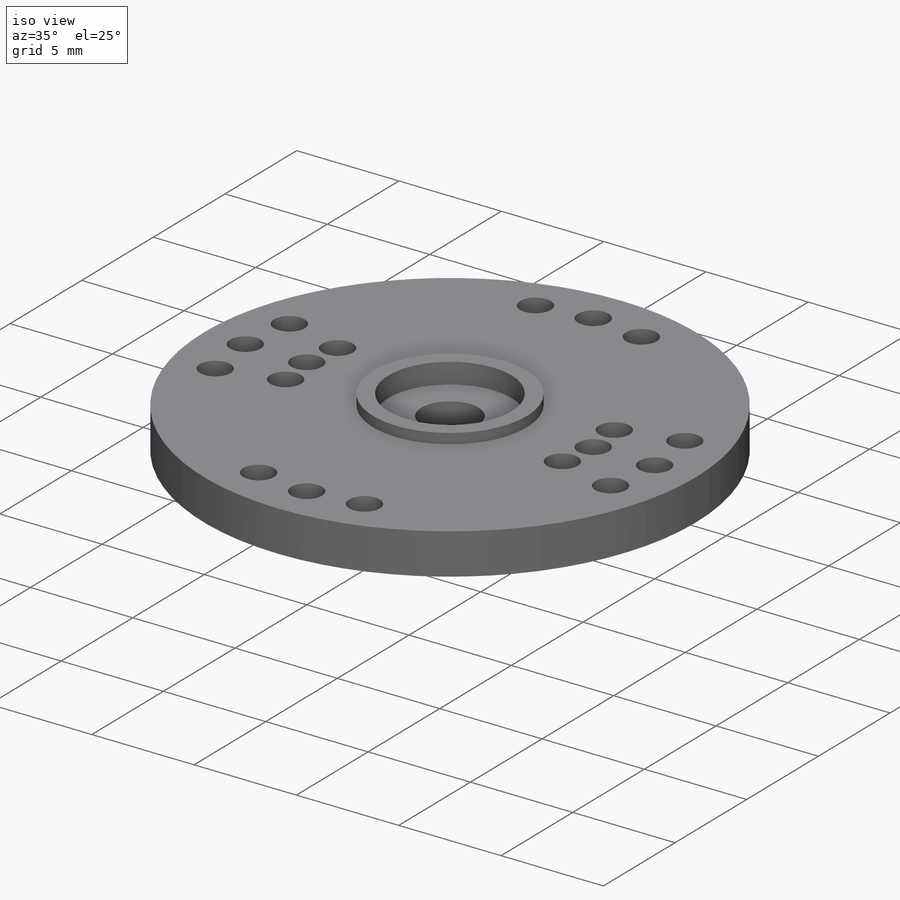
[diagram: iso view]
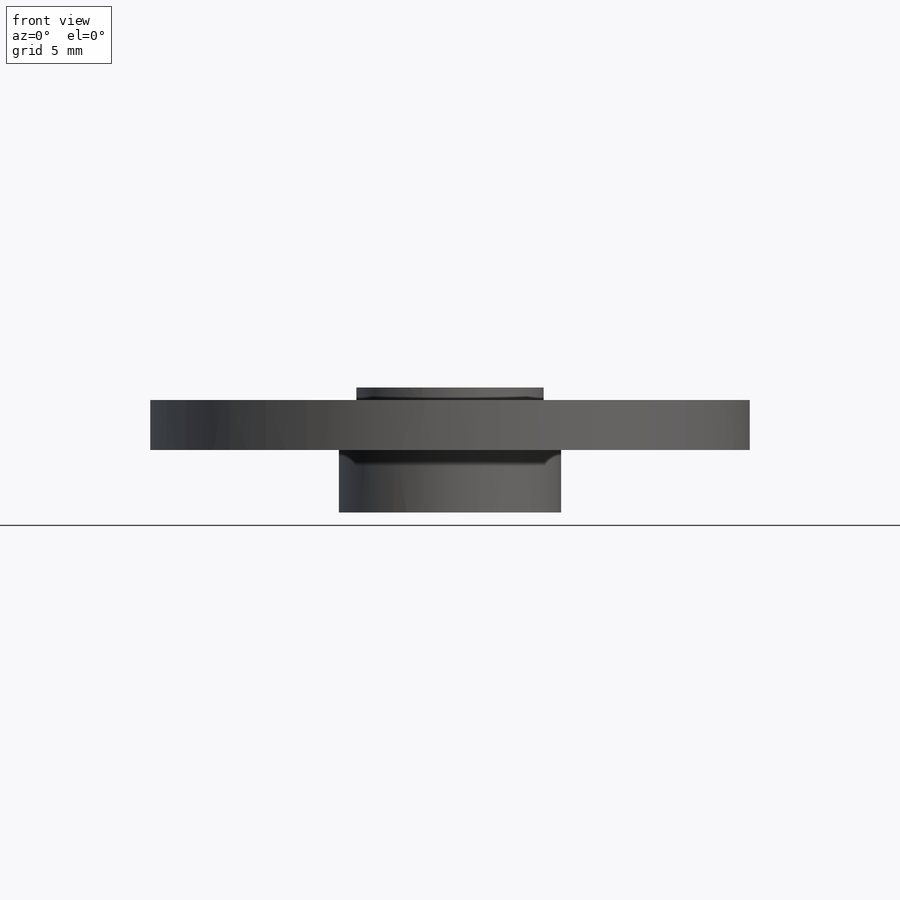
[diagram: front view]
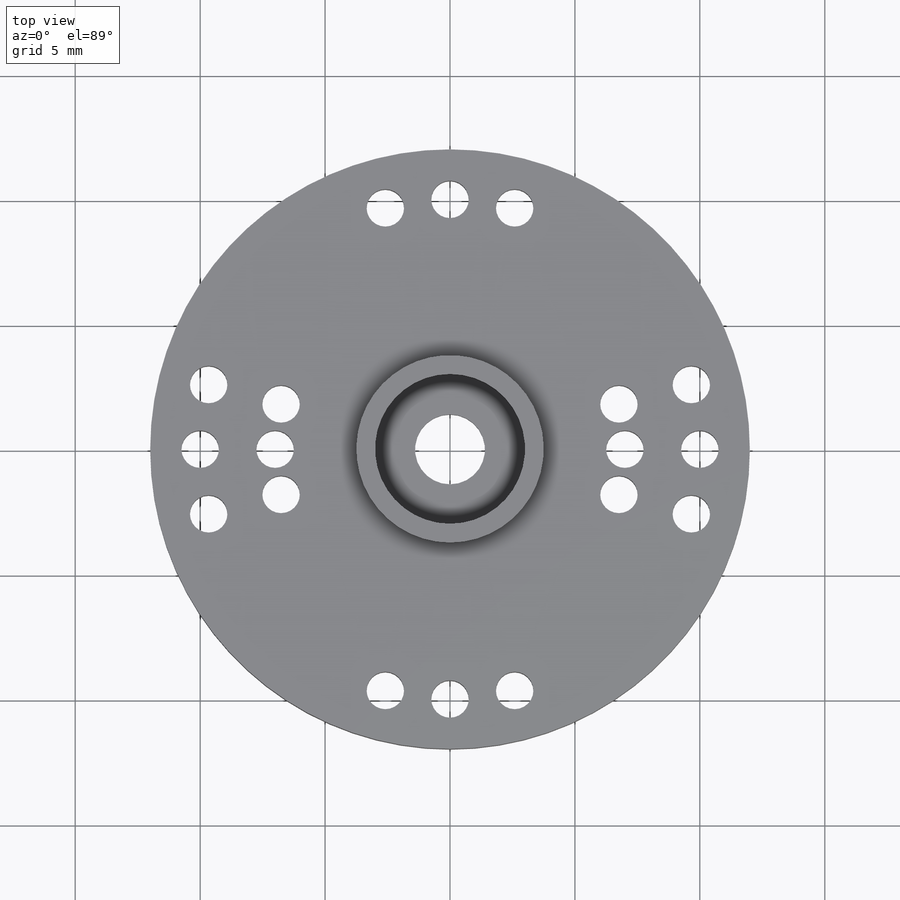
[diagram: top view]
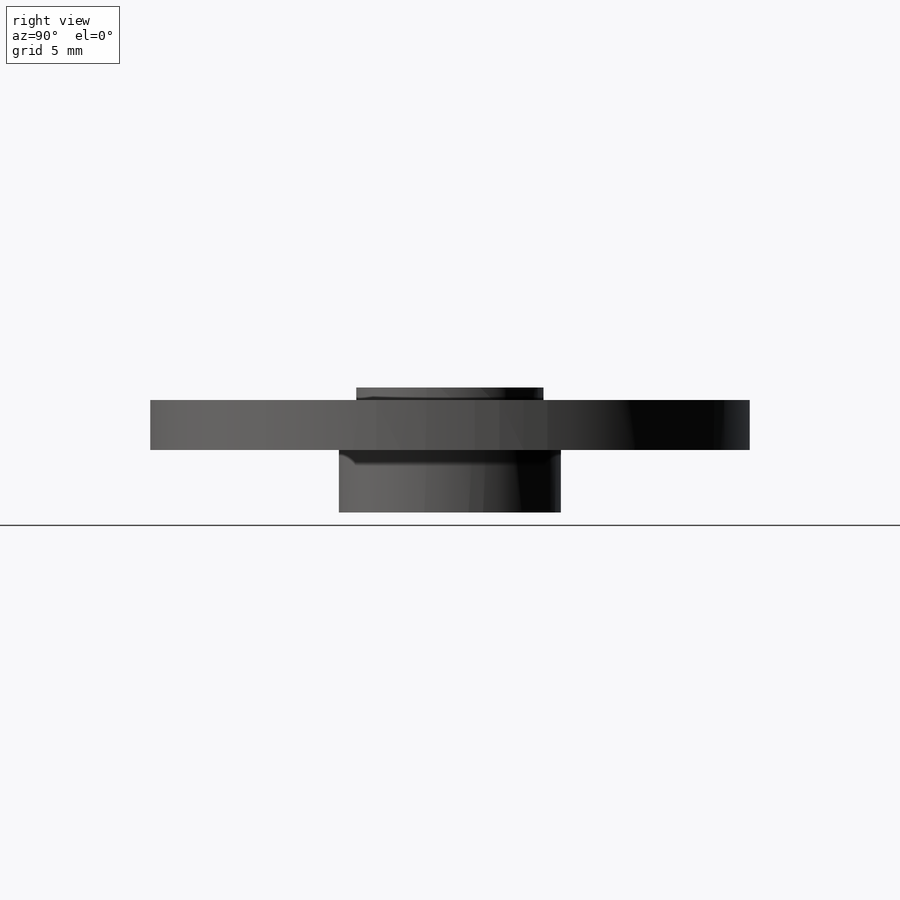
[diagram: right view]
SOLIDWORKS PART (.sldprt)
format: sldprt  version: not decoded by parser v0  size: 351,232 bytes
history: native  units: mm
features: sketch x7, hole x2, pattern_circular x2, cut_extrude x2, material x1, revolve x1 (+13 scaffold rows collapsed)
feature tree (28):
  scaffold x13  (default folders/planes/origin — collapsed)
  material  "PC High Viscosity"
  sketch  "Sketch1"  dims[c1.D1=8.9mm c1.D2=3.175mm c1.D3=2.5mm c1.D4=24.0mm c2.D2=2.5mm c2.D3=4.5mm c2.D5=2.8mm c2.D6=7.5mm c2.D7=5.0mm]
  revolve  "Revolve1"  Angle=360deg
  hole  "Ø1.5 (1.5) Diameter Hole1"  Diameter=1.5mm Depth=2mm
  sketch  "Sketch3"  dims[c1.D1=20.0mm c1.D2=10.0mm c2.D2=15.0deg c2.D3=10.0mm c3.D3=15.0deg]
  sketch  "Sketch2"  dims[hole-wizard template sketch: 59 standard entries collapsed; hole parameters kept: c18.Thru Hole Dia.=1.5mm c18.Thru Hole Depth=2.0mm]
  pattern_circular  "CirPattern1"  Count=4 Angle=360deg
  sketch  "Sketch4"  dims[D1=6.0mm]
  cut_extrude  "Cut-Extrude1"  Depth=1mm
  sketch  "Sketch5"  dims[D1=6.0mm]
  cut_extrude  "Cut-Extrude2"  Depth=3mm
  hole  "Ø1.5 (1.5) Diameter Hole2"  Diameter=1.5mm Depth=2mm
  sketch  "Sketch7"  dims[c1.D3=14.0mm c1.D1=~6.012274mm c2.D1=15.0deg c2.D2=~6.13563mm c3.D2=15.0deg c3.D3=~6.136567mm]
  sketch  "Sketch6"  dims[hole-wizard template sketch: 59 standard entries collapsed; hole parameters kept: c18.Thru Hole Dia.=1.5mm c18.Thru Hole Depth=2.0mm]
  pattern_circular  "CirPattern2"  Count=2 Angle=360deg
decode coverage: 14 of 14 modeling features carry decoded parameters
note: ~ marks probable driven/reference dimensions
note: suppression state not decoded; provenance and decode notes live in map.json
